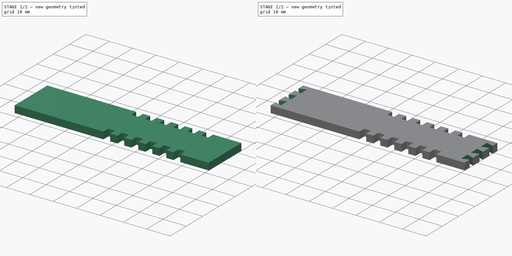
[diagram: build sequence overview — one tinted view per stage of 2, left to right]
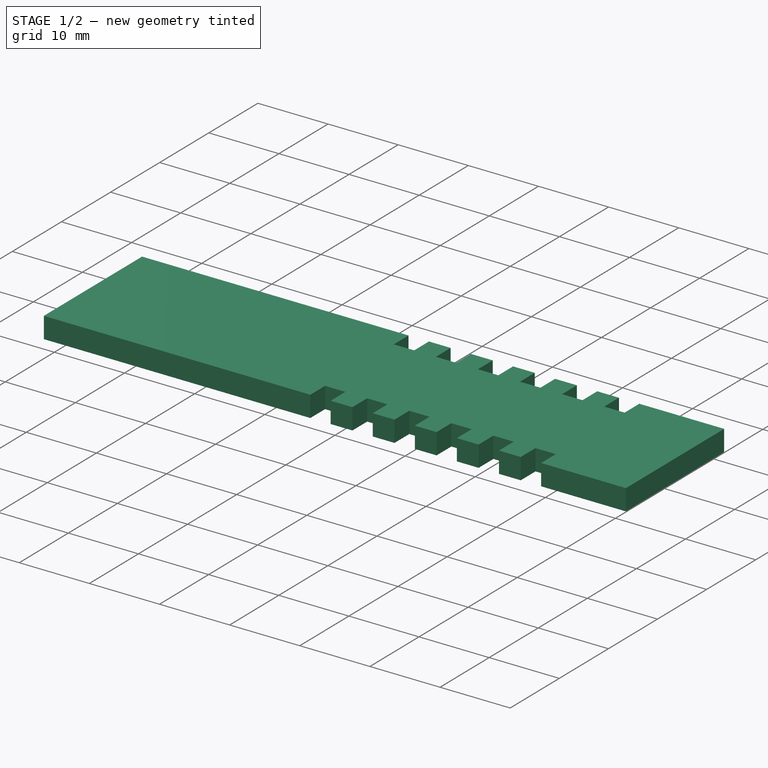
[diagram: stage 1 of 2 — iso view after this stage's code; geometry added in this stage tinted green]
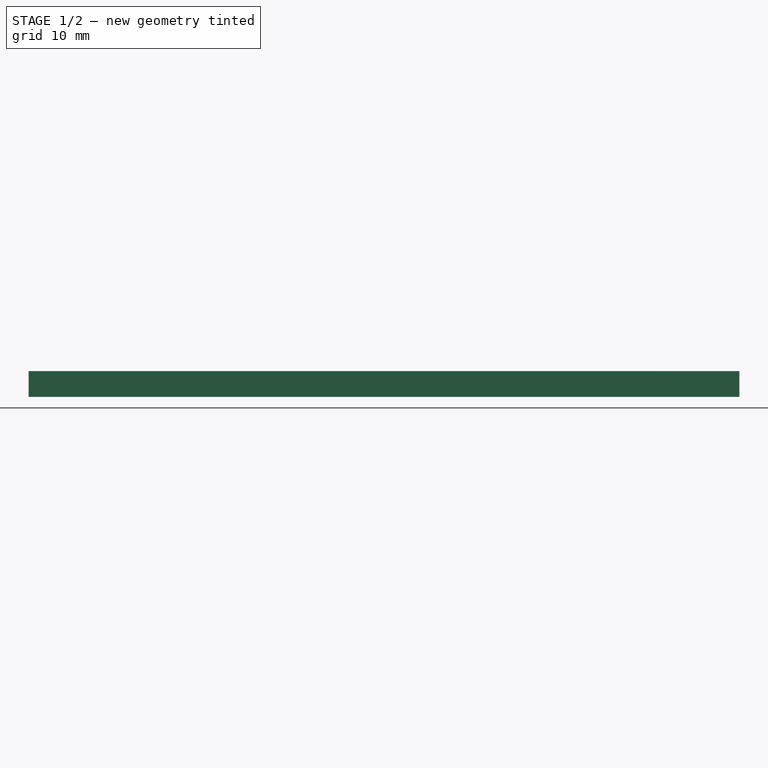
[diagram: stage 1 of 2 — front view after this stage's code; geometry added in this stage tinted green]
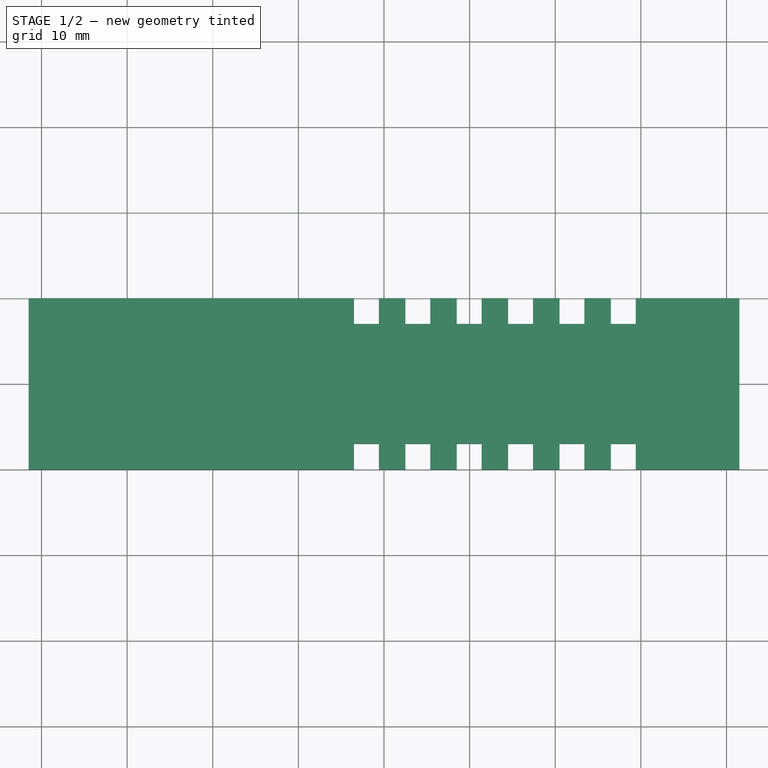
[diagram: stage 1 of 2 — top view after this stage's code; geometry added in this stage tinted green]
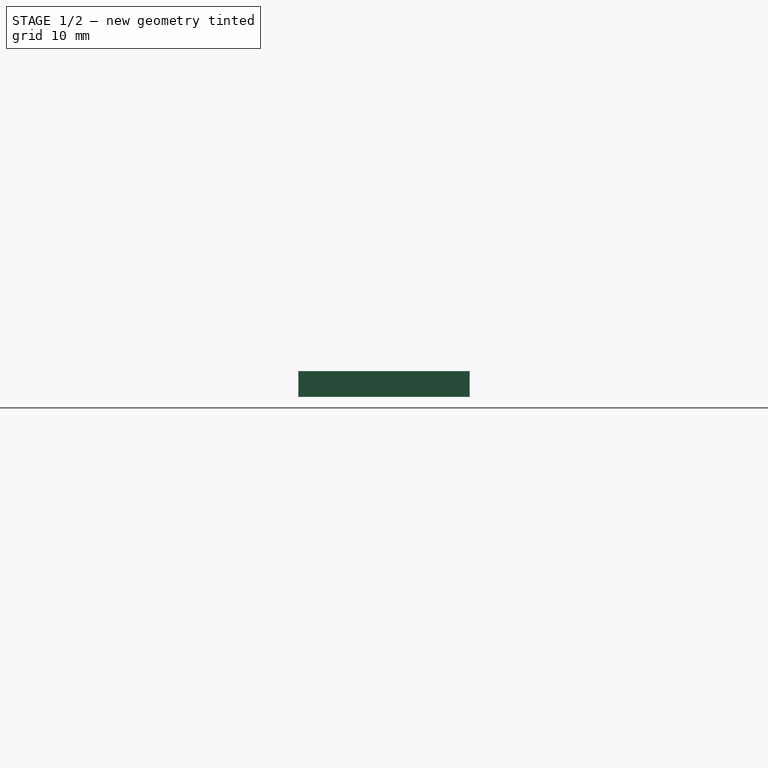
[diagram: stage 1 of 2 — right view after this stage's code; geometry added in this stage tinted green]
FCSTD DOCUMENT  (FreeCAD 0.14R3700 (Git))
Label: Kinect_Base
License: All rights reserved
LicenseURL: http://de.wikipedia.org/wiki/Alle_Rechte_vorbehalten
objects: Sketcher::SketchObject×3, PartDesign::Pocket×2, PartDesign::LinearPattern×2, PartDesign::Pad×1
note: 11 computed .brp shape members not serialized (recipe doc carries the construction recipe); baked Part::Feature solids carry a one-line shape summary decoded from their .brp

FEATURE [Sketcher::SketchObject] Sketch
  sketch-geometry (4):
    g0: LineSegment StartX=-41.5 StartY=10 StartZ=0 EndX=41.5 EndY=10 EndZ=0
    g1: LineSegment StartX=41.5 StartY=10 StartZ=0 EndX=41.5 EndY=-10 EndZ=0
    g2: LineSegment StartX=41.5 StartY=-10 StartZ=0 EndX=-41.5 EndY=-10 EndZ=0
    g3: LineSegment StartX=-41.5 StartY=-10 StartZ=0 EndX=-41.5 EndY=10 EndZ=0
  constraints (12):
    c: Coincident(g0,g1)
    c: Coincident(g1,g2)
    c: Coincident(g2,g3)
    c: Coincident(g3,g0)
    c: Horizontal(g0)
    c: Horizontal(g2)
    c: Vertical(g1)
    c: Vertical(g3)
    c: Symmetric(g1,g2,g-2)
    c: Symmetric(g0,g1,g-1)
    c: Distance(g1) = 20
    c: Distance(g0) = 83
FEATURE [PartDesign::Pad] Pad
  Length = 3
  Length2 = 100
  Sketch = -> Sketch
  Type = 0
FEATURE [Sketcher::SketchObject] Sketch002
  ExternalGeometry = -> [Pad]
  Placement = pos=(0,0,3) rot=(0,0,1;0rad)
  Support = -> Pad [Face6]
  sketch-geometry (8):
    g0: LineSegment StartX=-3.5 StartY=10 StartZ=0 EndX=-0.6 EndY=10 EndZ=0
    g1: LineSegment StartX=-0.6 StartY=10 StartZ=0 EndX=-0.6 EndY=7 EndZ=0
    g2: LineSegment StartX=-0.6 StartY=7 StartZ=0 EndX=-3.5 EndY=7 EndZ=0
    g3: LineSegment StartX=-3.5 StartY=7 StartZ=0 EndX=-3.5 EndY=10 EndZ=0
    g4: LineSegment StartX=-3.5 StartY=-7 StartZ=0 EndX=-0.6 EndY=-7 EndZ=0
    g5: LineSegment StartX=-0.6 StartY=-7 StartZ=0 EndX=-0.6 EndY=-10 EndZ=0
    g6: LineSegment StartX=-0.6 StartY=-10 StartZ=0 EndX=-3.5 EndY=-10 EndZ=0
    g7: LineSegment StartX=-3.5 StartY=-10 StartZ=0 EndX=-3.5 EndY=-7 EndZ=0
  constraints (24):
    c: Coincident(g0,g1)
    c: Coincident(g1,g2)
    c: Coincident(g2,g3)
    c: Coincident(g3,g0)
    c: Horizontal(g0)
    c: Horizontal(g2)
    c: Vertical(g1)
    c: Vertical(g3)
    c: Distance(g0,g2) = 3
    c: Distance(g0,g0) = 2.9
    c: DistanceY(g0,g-3) = 0
    c: Distance(g0,g-3) = 38
    c: Coincident(g4,g5)
    c: Coincident(g5,g6)
    c: Coincident(g6,g7)
    c: Coincident(g7,g4)
    c: Horizontal(g4)
    c: Horizontal(g6)
    c: Vertical(g5)
    c: Vertical(g7)
    c: DistanceX(g0,g6) = 0
    c: DistanceX(g5,g1) = 0
    c: DistanceY(g6,g-3) = 0
    c: DistanceY(g7) = 3
FEATURE [PartDesign::Pocket] Pocket
  Length = 5
  Sketch = -> Sketch002
  Type = 0
FEATURE [PartDesign::LinearPattern] LinearPattern
  Direction = -> Sketch002 [H_Axis]
  Length = 30
  Occurrences = 6
  Originals = -> [Pocket]
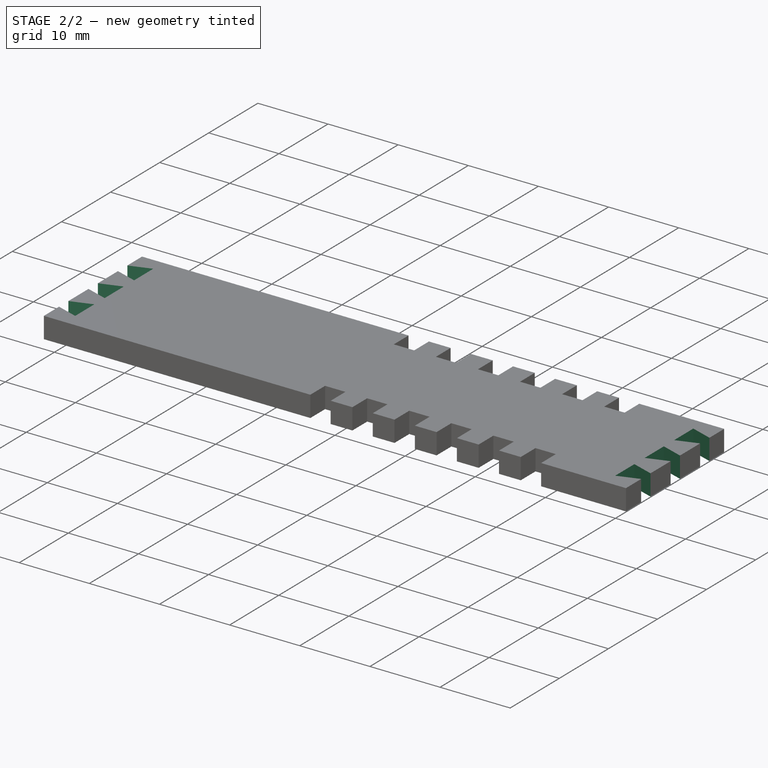
[diagram: stage 2 of 2 — iso view after this stage's code; geometry added in this stage tinted green]
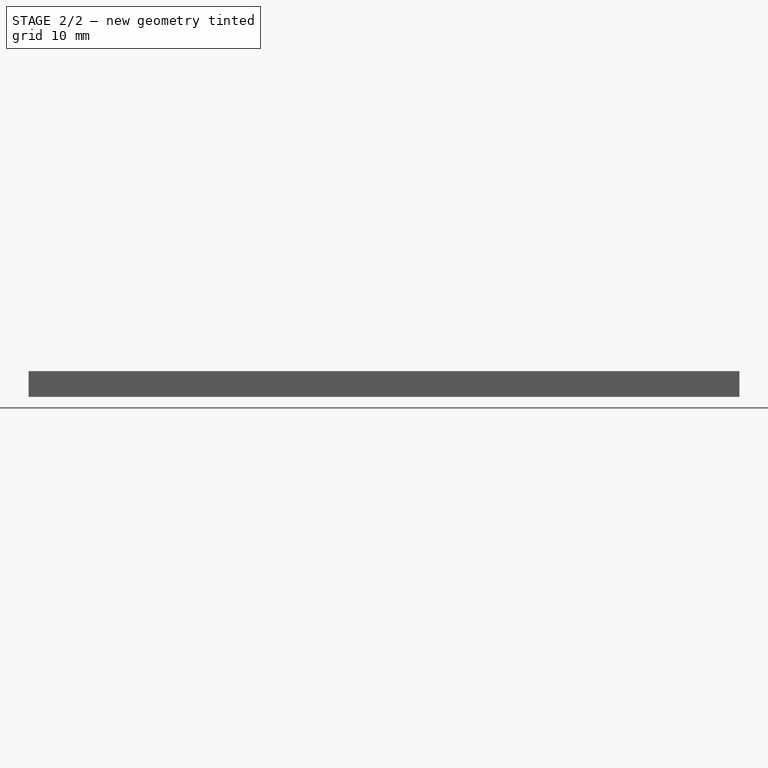
[diagram: stage 2 of 2 — front view after this stage's code; geometry added in this stage tinted green]
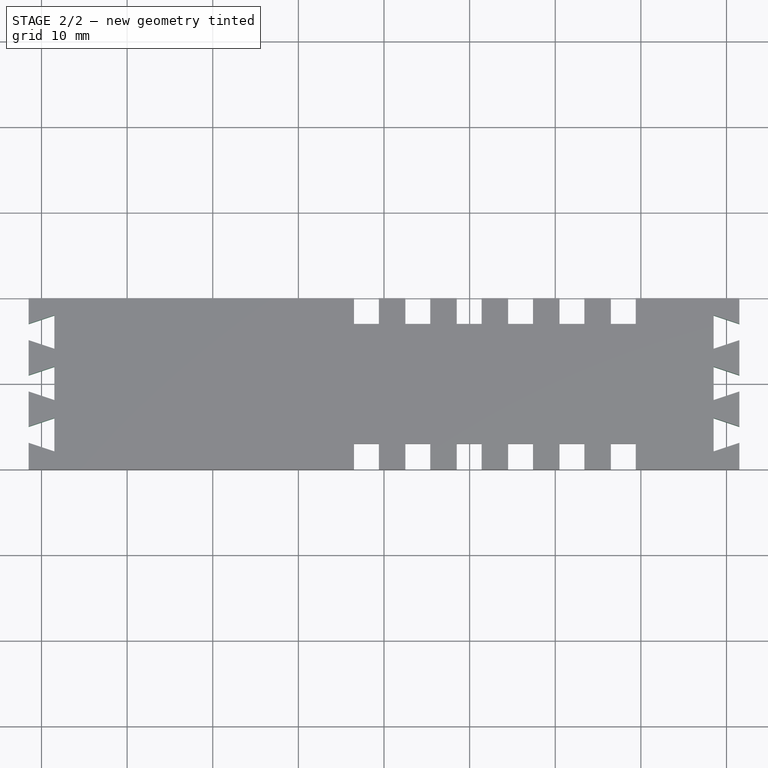
[diagram: stage 2 of 2 — top view after this stage's code; geometry added in this stage tinted green]
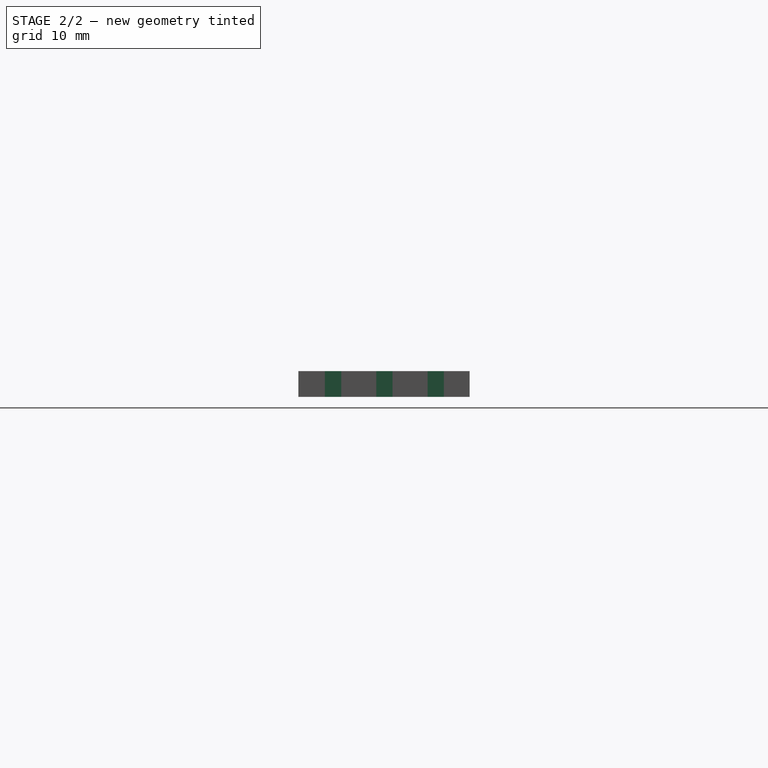
[diagram: stage 2 of 2 — right view after this stage's code; geometry added in this stage tinted green]
FEATURE [Sketcher::SketchObject] Sketch003
  ExternalGeometry = -> [LinearPattern]
  Placement = pos=(0,0,3) rot=(0,0,1;0rad)
  Support = -> LinearPattern [Face4]
  sketch-geometry (8):
    g0: LineSegment StartX=-41.5 StartY=7 StartZ=0 EndX=-38.5 EndY=8 EndZ=0
    g1: LineSegment StartX=-38.5 StartY=8 StartZ=0 EndX=-38.5 EndY=4.1 EndZ=0
    g2: LineSegment StartX=-38.5 StartY=4.1 StartZ=0 EndX=-41.5 EndY=5.1 EndZ=0
    g3: LineSegment StartX=-41.5 StartY=5.1 StartZ=0 EndX=-41.5 EndY=7 EndZ=0
    g4: LineSegment StartX=38.5 StartY=8 StartZ=0 EndX=41.5 EndY=7 EndZ=0
    g5: LineSegment StartX=41.5 StartY=7 StartZ=0 EndX=41.5 EndY=5.1 EndZ=0
    g6: LineSegment StartX=41.5 StartY=5.1 StartZ=0 EndX=38.5 EndY=4.1 EndZ=0
    g7: LineSegment StartX=38.5 StartY=4.1 StartZ=0 EndX=38.5 EndY=8 EndZ=0
  constraints (24):
    c: Coincident(g1,g2)
    c: Coincident(g2,g3)
    c: Coincident(g3,g0)
    c: Parallel(g3,g1)
    c: Equal(g0,g2)
    c: Coincident(g1,g0)
    c: DistanceX(g2,g0) = 0
    c: DistanceX(g0,g0) = 3
    c: Distance(g2,g0) = 1.9
    c: Distance(g1,g0) = 3.9
    c: DistanceX(g0,g-3) = 0
    c: DistanceY(g0,g-3) = 2
    c: Coincident(g4,g5)
    c: Coincident(g5,g6)
    c: Coincident(g6,g7)
    c: Coincident(g7,g4)
    c: Parallel(g7,g5)
    c: Equal(g4,g6)
    c: DistanceX(g6,g4) = 0
    c: Distance(g5) = 1.9
    c: Distance(g7) = 3.9
    c: DistanceX(g4,g4) = 3
    c: DistanceY(g4,g0) = 0
    c: DistanceX(g4,g0) = -83
FEATURE [PartDesign::Pocket] Pocket001
  Length = 5
  Sketch = -> Sketch003
  Type = 0
FEATURE [PartDesign::LinearPattern] LinearPattern001
  Direction = -> Sketch003 [V_Axis]
  Length = 12
  Occurrences = 3
  Originals = -> [Pocket001]
  Reversed = true
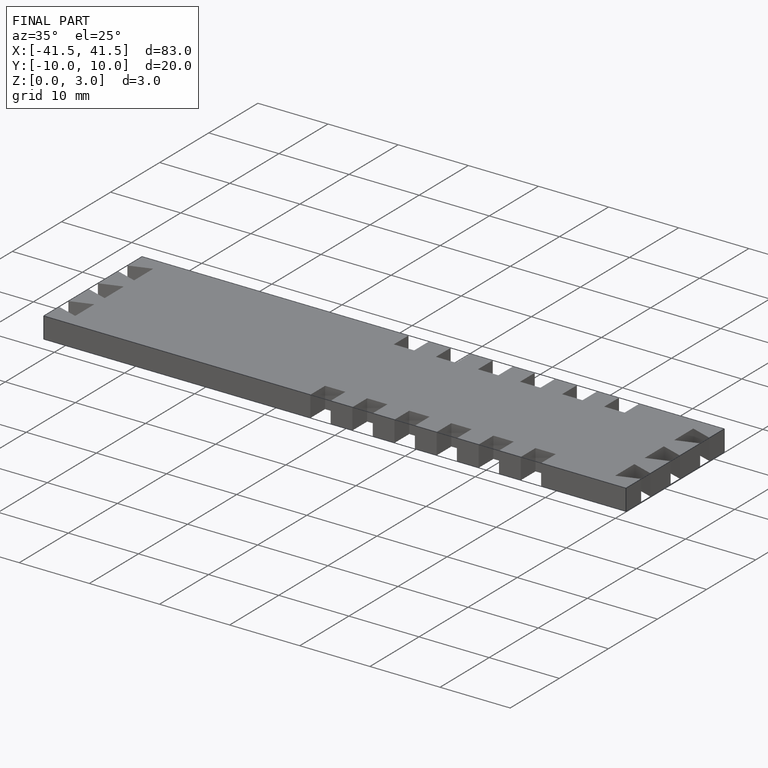
[diagram: finished part — iso view with bounding-box wireframe]
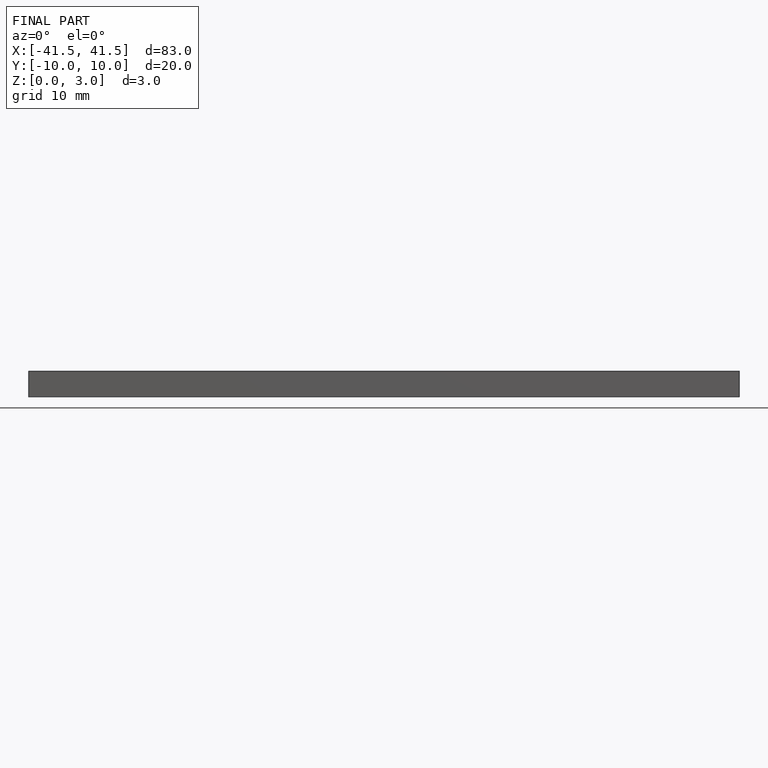
[diagram: finished part — front view with bounding-box wireframe]
